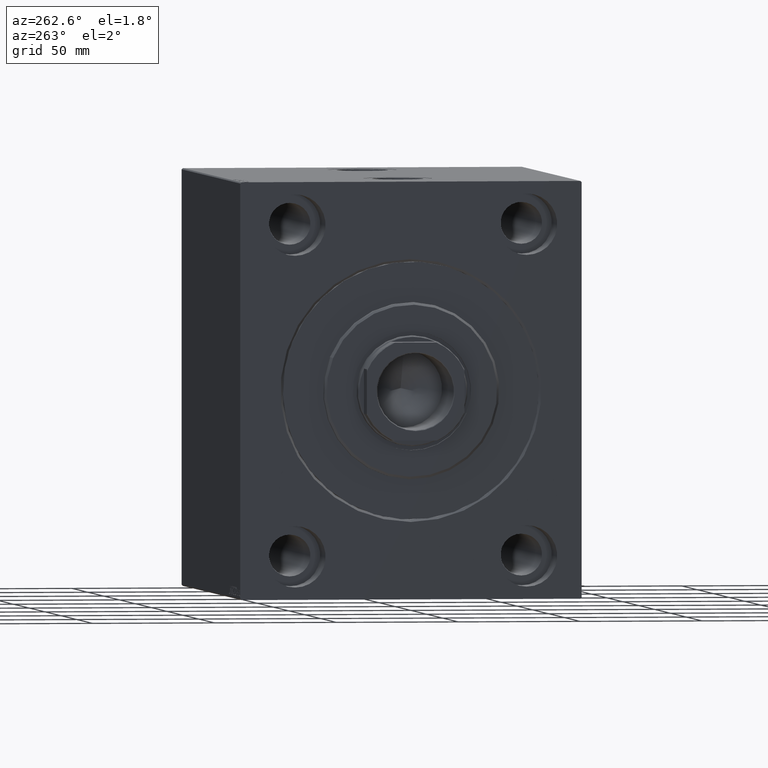
[diagram: clean part render]
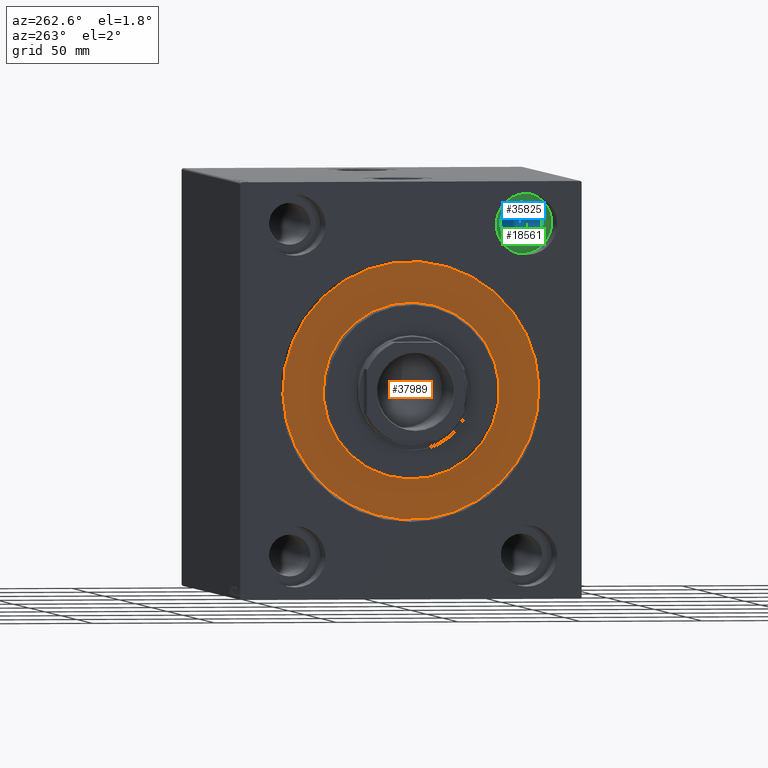
[diagram: same view with three faces highlighted in distinct colors, each labeled with its STEP entity id]
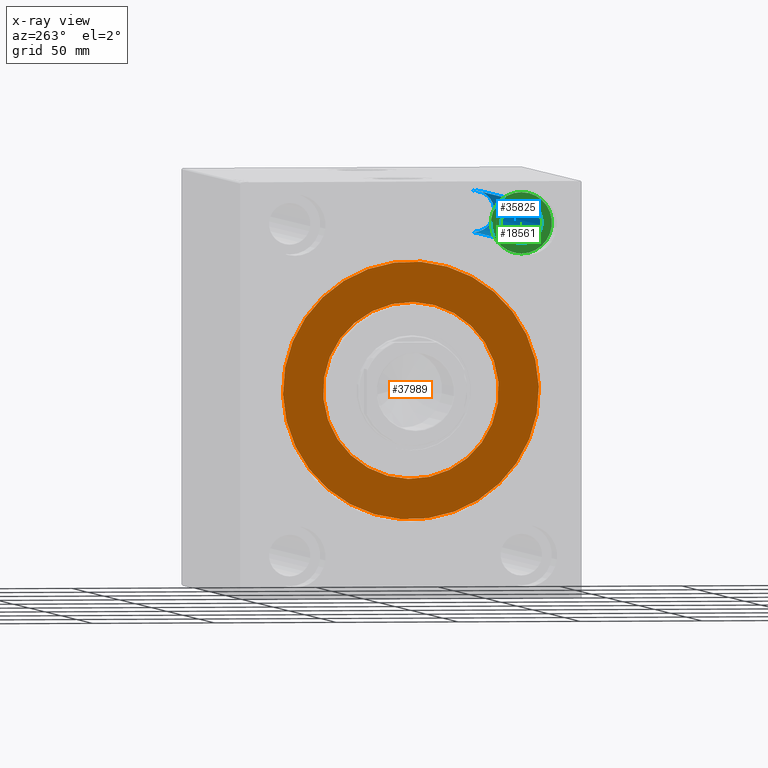
[diagram: x-ray of the same camera — body ghosted, the three highlighted faces saturated]
A machine part, auxiliary view with three faces highlighted in distinct colors.
The next image is the same camera in x-ray (body ghosted, the three faces saturated) — at least one of them is partly hidden behind the body in this view.
Their STEP definitions:

[orange] entity #37989 — the highlighted planar face has unit normal (1, 0, -0).
#1181 = AXIS2_PLACEMENT_3D ( 'NONE', #2379, #36939, #19771 ) ;
#1800 = CARTESIAN_POINT ( 'NONE',  ( 0.000000000000000000, 0.000000000000000000, 0.000000000000000000 ) ) ;
#2379 = CARTESIAN_POINT ( 'NONE',  ( 0.000000000000000000, 0.000000000000000000, 0.000000000000000000 ) ) ;
#2396 = VERTEX_POINT ( 'NONE', #15662 ) ;
#3517 = EDGE_LOOP ( 'NONE', ( #4346, #18486 ) ) ;
#3943 = EDGE_LOOP ( 'NONE', ( #37287, #5227 ) ) ;
#4285 = CARTESIAN_POINT ( 'NONE',  ( 0.000000000000000000, 6.429395695523603167E-15, 52.49999999999999289 ) ) ;
#4346 = ORIENTED_EDGE ( 'NONE', *, *, #38632, .F. ) ;
#5003 = CARTESIAN_POINT ( 'NONE',  ( 0.000000000000000000, 0.000000000000000000, 0.000000000000000000 ) ) ;
#5227 = ORIENTED_EDGE ( 'NONE', *, *, #9224, .F. ) ;
#8104 = EDGE_CURVE ( 'NONE', #2396, #10198, #33163, .T. ) ;
#8268 = AXIS2_PLACEMENT_3D ( 'NONE', #1800, #18742, #15402 ) ;
#9000 = DIRECTION ( 'NONE',  ( -1.000000000000000000, 0.000000000000000000, 0.000000000000000000 ) ) ;
#9224 = EDGE_CURVE ( 'NONE', #10198, #2396, #39579, .T. ) ;
#10198 = VERTEX_POINT ( 'NONE', #4285 ) ;
#11323 = EDGE_CURVE ( 'NONE', #43203, #30048, #21853, .T. ) ;
#14673 = DIRECTION ( 'NONE',  ( 0.000000000000000000, 0.000000000000000000, 1.000000000000000000 ) ) ;
#15402 = DIRECTION ( 'NONE',  ( 0.000000000000000000, 0.000000000000000000, -1.000000000000000000 ) ) ;
#15662 = CARTESIAN_POINT ( 'NONE',  ( 0.000000000000000000, 0.000000000000000000, -52.49999999999999289 ) ) ;
#17479 = AXIS2_PLACEMENT_3D ( 'NONE', #24481, #38090, #14673 ) ;
#17586 = FACE_BOUND ( 'NONE', #3517, .T. ) ;
#18486 = ORIENTED_EDGE ( 'NONE', *, *, #11323, .F. ) ;
#18594 = DIRECTION ( 'NONE',  ( -1.000000000000000000, 0.000000000000000000, 0.000000000000000000 ) ) ;
#18742 = DIRECTION ( 'NONE',  ( 1.000000000000000000, -0.000000000000000000, 0.000000000000000000 ) ) ;
#19771 = DIRECTION ( 'NONE',  ( 0.000000000000000000, 0.000000000000000000, -1.000000000000000000 ) ) ;
#20843 = CARTESIAN_POINT ( 'NONE',  ( 0.000000000000000000, 0.000000000000000000, 36.00000000000000000 ) ) ;
#21816 = PLANE ( 'NONE',  #17479 ) ;
#21853 = CIRCLE ( 'NONE', #1181, 36.00000000000000000 ) ;
#22353 = CARTESIAN_POINT ( 'NONE',  ( 0.000000000000000000, 0.000000000000000000, 0.000000000000000000 ) ) ;
#24481 = CARTESIAN_POINT ( 'NONE',  ( 0.000000000000000000, 0.000000000000000000, 0.000000000000000000 ) ) ;
#28822 = DIRECTION ( 'NONE',  ( 0.000000000000000000, 0.000000000000000000, 1.000000000000000000 ) ) ;
#30048 = VERTEX_POINT ( 'NONE', #20843 ) ;
#31721 = AXIS2_PLACEMENT_3D ( 'NONE', #5003, #18594, #31958 ) ;
#31958 = DIRECTION ( 'NONE',  ( 0.000000000000000000, 0.000000000000000000, 1.000000000000000000 ) ) ;
#33163 = CIRCLE ( 'NONE', #36004, 52.49999999999999289 ) ;
#34733 = FACE_OUTER_BOUND ( 'NONE', #3943, .T. ) ;
#36004 = AXIS2_PLACEMENT_3D ( 'NONE', #22353, #9000, #28822 ) ;
#36939 = DIRECTION ( 'NONE',  ( 1.000000000000000000, -0.000000000000000000, 0.000000000000000000 ) ) ;
#37287 = ORIENTED_EDGE ( 'NONE', *, *, #8104, .F. ) ;
#37710 = CARTESIAN_POINT ( 'NONE',  ( 0.000000000000000000, 4.408728476930470856E-15, -36.00000000000000000 ) ) ;
#37989 = ADVANCED_FACE ( 'NONE', ( #17586, #34733 ), #21816, .F. ) ;
#38090 = DIRECTION ( 'NONE',  ( -1.000000000000000000, 0.000000000000000000, 0.000000000000000000 ) ) ;
#38632 = EDGE_CURVE ( 'NONE', #30048, #43203, #41732, .T. ) ;
#39579 = CIRCLE ( 'NONE', #31721, 52.49999999999999289 ) ;
#41732 = CIRCLE ( 'NONE', #8268, 36.00000000000000000 ) ;
#43203 = VERTEX_POINT ( 'NONE', #37710 ) ;

[blue] entity #35825 — the highlighted cylindrical surface (edge-blend (fillet) strip) has radius 8.5 mm, axis along (-1, -0, -0).
#416 = CARTESIAN_POINT ( 'NONE',  ( 185.0000000000000000, -47.49999999999997868, 67.50000000000000000 ) ) ;
#1013 = CARTESIAN_POINT ( 'NONE',  ( 17.00000000000001421, -47.49999999999997868, 59.00000000000000000 ) ) ;
#3203 = EDGE_CURVE ( 'NONE', #22527, #15044, #23771, .T. ) ;
#3273 = CARTESIAN_POINT ( 'NONE',  ( 167.9999999999999716, -47.49999999999997868, 67.50000000000000000 ) ) ;
#3892 = VERTEX_POINT ( 'NONE', #1013 ) ;
#4524 = CARTESIAN_POINT ( 'NONE',  ( 167.9999999999999716, -47.49999999999997868, 76.00000000000001421 ) ) ;
#5546 = EDGE_LOOP ( 'NONE', ( #14029, #32066, #37529, #5932 ) ) ;
#5932 = ORIENTED_EDGE ( 'NONE', *, *, #34852, .F. ) ;
#7051 = VECTOR ( 'NONE', #12938, 1000.000000000000000 ) ;
#9990 = DIRECTION ( 'NONE',  ( 0.000000000000000000, 0.000000000000000000, -1.000000000000000000 ) ) ;
#10115 = DIRECTION ( 'NONE',  ( -1.000000000000000000, 0.000000000000000000, 0.000000000000000000 ) ) ;
#12938 = DIRECTION ( 'NONE',  ( -1.000000000000000000, -0.000000000000000000, -0.000000000000000000 ) ) ;
#13007 = DIRECTION ( 'NONE',  ( 0.000000000000000000, 0.000000000000000000, 1.000000000000000000 ) ) ;
#14029 = ORIENTED_EDGE ( 'NONE', *, *, #3203, .F. ) ;
#14616 = CARTESIAN_POINT ( 'NONE',  ( 167.9999999999999716, -47.49999999999997868, 59.00000000000000000 ) ) ;
#15044 = VERTEX_POINT ( 'NONE', #4524 ) ;
#15275 = CYLINDRICAL_SURFACE ( 'NONE', #18849, 8.500000000000007105 ) ;
#16415 = DIRECTION ( 'NONE',  ( -1.000000000000000000, -0.000000000000000000, -0.000000000000000000 ) ) ;
#16867 = DIRECTION ( 'NONE',  ( -1.000000000000000000, -0.000000000000000000, -0.000000000000000000 ) ) ;
#17306 = VECTOR ( 'NONE', #16415, 1000.000000000000000 ) ;
#18620 = AXIS2_PLACEMENT_3D ( 'NONE', #30144, #10115, #13007 ) ;
#18849 = AXIS2_PLACEMENT_3D ( 'NONE', #416, #42260, #25097 ) ;
#19060 = FACE_OUTER_BOUND ( 'NONE', #5546, .T. ) ;
#20635 = CARTESIAN_POINT ( 'NONE',  ( 17.00000000000001421, -47.49999999999997868, 76.00000000000001421 ) ) ;
#21006 = VERTEX_POINT ( 'NONE', #20635 ) ;
#21999 = EDGE_CURVE ( 'NONE', #22527, #3892, #35285, .T. ) ;
#22527 = VERTEX_POINT ( 'NONE', #14616 ) ;
#23771 = CIRCLE ( 'NONE', #33126, 8.500000000000007105 ) ;
#25097 = DIRECTION ( 'NONE',  ( 0.000000000000000000, 0.000000000000000000, 1.000000000000000000 ) ) ;
#26241 = LINE ( 'NONE', #33131, #17306 ) ;
#29516 = EDGE_CURVE ( 'NONE', #3892, #21006, #34996, .T. ) ;
#30144 = CARTESIAN_POINT ( 'NONE',  ( 17.00000000000001421, -47.49999999999997868, 67.50000000000000000 ) ) ;
#32066 = ORIENTED_EDGE ( 'NONE', *, *, #21999, .T. ) ;
#33126 = AXIS2_PLACEMENT_3D ( 'NONE', #3273, #16867, #9990 ) ;
#33131 = CARTESIAN_POINT ( 'NONE',  ( 185.0000000000000000, -47.49999999999997868, 76.00000000000001421 ) ) ;
#34852 = EDGE_CURVE ( 'NONE', #15044, #21006, #26241, .T. ) ;
#34996 = CIRCLE ( 'NONE', #18620, 8.500000000000007105 ) ;
#35285 = LINE ( 'NONE', #38866, #7051 ) ;
#35825 = ADVANCED_FACE ( 'NONE', ( #19060 ), #15275, .F. ) ;
#37529 = ORIENTED_EDGE ( 'NONE', *, *, #29516, .T. ) ;
#38866 = CARTESIAN_POINT ( 'NONE',  ( 185.0000000000000000, -47.49999999999997868, 59.00000000000000000 ) ) ;
#42260 = DIRECTION ( 'NONE',  ( -1.000000000000000000, -0.000000000000000000, -0.000000000000000000 ) ) ;

[green] entity #18561 — the highlighted planar face has unit normal (-1, 0, 0).
#90 = CARTESIAN_POINT ( 'NONE',  ( 17.00000000000000000, -47.49999999999997868, 80.00000000000001421 ) ) ;
#515 = DIRECTION ( 'NONE',  ( -1.000000000000000000, 0.000000000000000000, 0.000000000000000000 ) ) ;
#920 = CARTESIAN_POINT ( 'NONE',  ( 17.00000000000000000, -47.49999999999997868, 67.50000000000000000 ) ) ;
#1013 = CARTESIAN_POINT ( 'NONE',  ( 17.00000000000001421, -47.49999999999997868, 59.00000000000000000 ) ) ;
#1390 = EDGE_LOOP ( 'NONE', ( #26972, #6497 ) ) ;
#3892 = VERTEX_POINT ( 'NONE', #1013 ) ;
#4274 = DIRECTION ( 'NONE',  ( -1.000000000000000000, 0.000000000000000000, 0.000000000000000000 ) ) ;
#4325 = DIRECTION ( 'NONE',  ( -1.000000000000000000, 0.000000000000000000, 0.000000000000000000 ) ) ;
#5119 = ORIENTED_EDGE ( 'NONE', *, *, #28391, .F. ) ;
#5558 = DIRECTION ( 'NONE',  ( 0.000000000000000000, 0.000000000000000000, 1.000000000000000000 ) ) ;
#5647 = EDGE_CURVE ( 'NONE', #13860, #7046, #7464, .T. ) ;
#6497 = ORIENTED_EDGE ( 'NONE', *, *, #5647, .T. ) ;
#7046 = VERTEX_POINT ( 'NONE', #90 ) ;
#7454 = FACE_BOUND ( 'NONE', #13679, .T. ) ;
#7464 = CIRCLE ( 'NONE', #34490, 12.50000000000001066 ) ;
#7646 = AXIS2_PLACEMENT_3D ( 'NONE', #920, #4274, #21434 ) ;
#9835 = CIRCLE ( 'NONE', #7646, 12.50000000000001066 ) ;
#10115 = DIRECTION ( 'NONE',  ( -1.000000000000000000, 0.000000000000000000, 0.000000000000000000 ) ) ;
#13007 = DIRECTION ( 'NONE',  ( 0.000000000000000000, 0.000000000000000000, 1.000000000000000000 ) ) ;
#13535 = EDGE_CURVE ( 'NONE', #7046, #13860, #9835, .T. ) ;
#13679 = EDGE_LOOP ( 'NONE', ( #5119, #32403 ) ) ;
#13860 = VERTEX_POINT ( 'NONE', #40990 ) ;
#18561 = ADVANCED_FACE ( 'NONE', ( #7454, #24829 ), #21043, .T. ) ;
#18620 = AXIS2_PLACEMENT_3D ( 'NONE', #30144, #10115, #13007 ) ;
#20635 = CARTESIAN_POINT ( 'NONE',  ( 17.00000000000001421, -47.49999999999997868, 76.00000000000001421 ) ) ;
#21006 = VERTEX_POINT ( 'NONE', #20635 ) ;
#21043 = PLANE ( 'NONE',  #36227 ) ;
#21434 = DIRECTION ( 'NONE',  ( 0.000000000000000000, 0.000000000000000000, 1.000000000000000000 ) ) ;
#22699 = CARTESIAN_POINT ( 'NONE',  ( 17.00000000000000000, -47.49999999999997868, 67.50000000000000000 ) ) ;
#24363 = DIRECTION ( 'NONE',  ( 0.000000000000000000, 0.000000000000000000, 1.000000000000000000 ) ) ;
#24829 = FACE_OUTER_BOUND ( 'NONE', #1390, .T. ) ;
#26972 = ORIENTED_EDGE ( 'NONE', *, *, #13535, .T. ) ;
#28391 = EDGE_CURVE ( 'NONE', #21006, #3892, #28542, .T. ) ;
#28542 = CIRCLE ( 'NONE', #36383, 8.500000000000007105 ) ;
#29516 = EDGE_CURVE ( 'NONE', #3892, #21006, #34996, .T. ) ;
#30144 = CARTESIAN_POINT ( 'NONE',  ( 17.00000000000001421, -47.49999999999997868, 67.50000000000000000 ) ) ;
#31262 = CARTESIAN_POINT ( 'NONE',  ( 17.00000000000001421, -47.49999999999997868, 67.50000000000000000 ) ) ;
#31952 = DIRECTION ( 'NONE',  ( 0.000000000000000000, 0.000000000000000000, 1.000000000000000000 ) ) ;
#32403 = ORIENTED_EDGE ( 'NONE', *, *, #29516, .F. ) ;
#34490 = AXIS2_PLACEMENT_3D ( 'NONE', #22699, #36315, #5558 ) ;
#34855 = CARTESIAN_POINT ( 'NONE',  ( 17.00000000000000000, 0.000000000000000000, 0.000000000000000000 ) ) ;
#34996 = CIRCLE ( 'NONE', #18620, 8.500000000000007105 ) ;
#36227 = AXIS2_PLACEMENT_3D ( 'NONE', #34855, #4325, #31952 ) ;
#36315 = DIRECTION ( 'NONE',  ( -1.000000000000000000, 0.000000000000000000, 0.000000000000000000 ) ) ;
#36383 = AXIS2_PLACEMENT_3D ( 'NONE', #31262, #515, #24363 ) ;
#40990 = CARTESIAN_POINT ( 'NONE',  ( 17.00000000000000000, -47.49999999999997868, 55.00000000000000000 ) ) ;